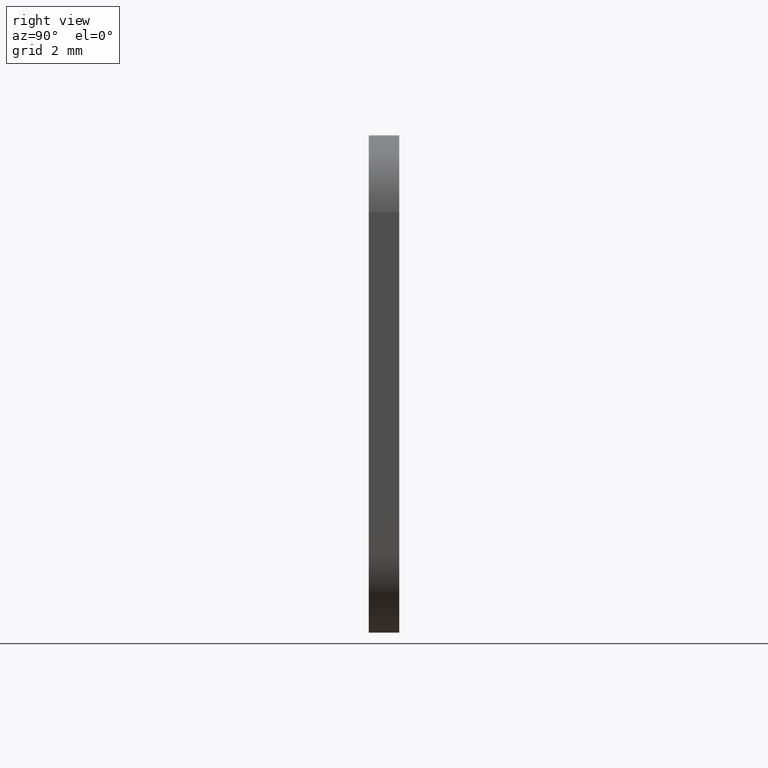
[diagram: clean part render]
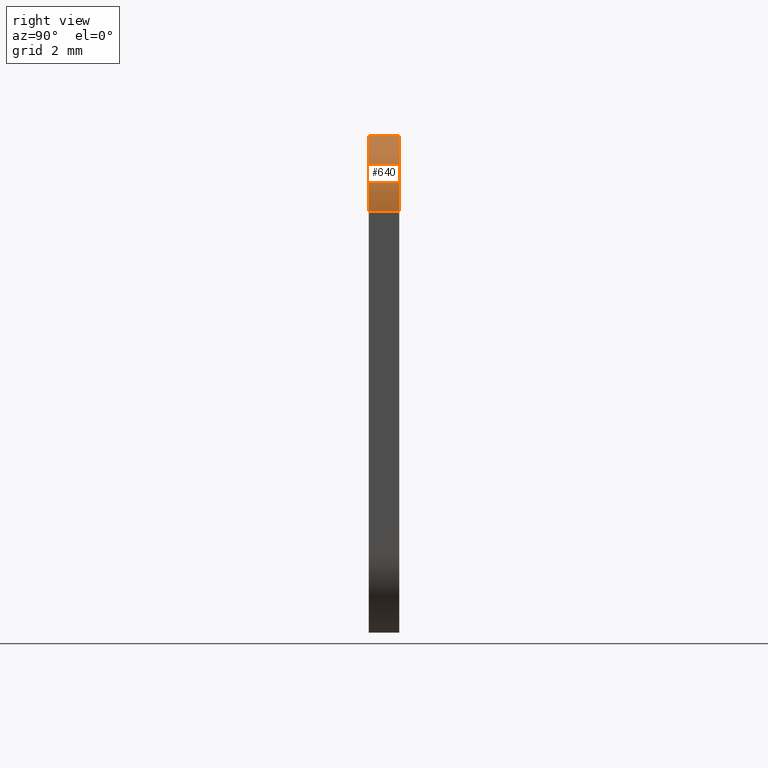
[diagram: same view with one face highlighted and labeled with its STEP entity id]
A machine part, right view. The second image highlights one B-rep face of the part: STEP entity #640.
In plain terms, the highlighted face is a freeform B-spline surface patch.
Its self-contained STEP definition (entity closure, byte-faithful):
#444=CARTESIAN_POINT('',(7.0,0.0,4.500000000000000));
#445=VERTEX_POINT('',#444);
#451=CARTESIAN_POINT('',(4.999999895280270,0.0,6.500000000000000));
#452=VERTEX_POINT('',#451);
#453=CARTESIAN_POINT('',(7.0,0.0,4.500000000000000));
#454=CARTESIAN_POINT('',(7.000000000000001,0.0,5.328427155417889));
#455=CARTESIAN_POINT('',(6.414213525349081,0.0,5.914213599397109));
#456=CARTESIAN_POINT('',(5.828427050698159,0.0,6.500000043376331));
#457=CARTESIAN_POINT('',(4.999999895280271,0.0,6.499999999999997));
#465=(BOUNDED_CURVE()B_SPLINE_CURVE(2,(#453,#454,#455,#456,#457),.UNSPECIFIED.,.F.,.U.)B_SPLINE_CURVE_WITH_KNOTS((3,2,3),(0.0,0.500000000000000,1.0),.UNSPECIFIED.)CURVE()GEOMETRIC_REPRESENTATION_ITEM()RATIONAL_B_SPLINE_CURVE((1.0,0.923879527501974,1.0,0.923879527501974,1.0))REPRESENTATION_ITEM(''));
#466=EDGE_CURVE('',#445,#452,#465,.T.);
#508=CARTESIAN_POINT('',(4.999999895280270,0.800003000000049,6.500000000000000));
#509=VERTEX_POINT('',#508);
#515=CARTESIAN_POINT('',(7.0,0.800003000000049,4.500000000000000));
#516=VERTEX_POINT('',#515);
#517=CARTESIAN_POINT('',(7.0,0.800003000000049,4.500000000000000));
#518=CARTESIAN_POINT('',(7.000000000000001,0.800003000000049,5.328427155417889));
#519=CARTESIAN_POINT('',(6.414213525349081,0.800003000000049,5.914213599397109));
#520=CARTESIAN_POINT('',(5.828427050698159,0.800003000000049,6.500000043376331));
#521=CARTESIAN_POINT('',(4.999999895280271,0.800003000000049,6.499999999999997));
#529=(BOUNDED_CURVE()B_SPLINE_CURVE(2,(#517,#518,#519,#520,#521),.UNSPECIFIED.,.F.,.U.)B_SPLINE_CURVE_WITH_KNOTS((3,2,3),(0.0,0.500000000000000,1.0),.UNSPECIFIED.)CURVE()GEOMETRIC_REPRESENTATION_ITEM()RATIONAL_B_SPLINE_CURVE((1.0,0.923879527501974,1.0,0.923879527501974,1.0))REPRESENTATION_ITEM(''));
#530=EDGE_CURVE('',#516,#509,#529,.T.);
#602=CARTESIAN_POINT('',(4.999999895280270,0.800003000000049,6.500000000000000));
#603=CARTESIAN_POINT('',(4.999999895280270,0.0,6.500000000000000));
#604=QUASI_UNIFORM_CURVE('',1,(#602,#603),.UNSPECIFIED.,.F.,.U.);
#605=EDGE_CURVE('',#509,#452,#604,.T.);
#616=CARTESIAN_POINT('',(4.912761225269327,0.820003075000050,6.498096443163715));
#617=CARTESIAN_POINT('',(4.912761225269327,-0.020500076875001,6.498096443163715));
#618=CARTESIAN_POINT('',(7.152120528918072,0.820003075000050,6.595868981871969));
#619=CARTESIAN_POINT('',(7.152120528918072,-0.020500076875001,6.595868981871969));
#620=CARTESIAN_POINT('',(6.995085826463835,0.820003075000050,4.359883815912956));
#621=CARTESIAN_POINT('',(6.995085826463835,-0.020500076875001,4.359883815912956));
#629=(BOUNDED_SURFACE()B_SPLINE_SURFACE(1,2,((#616,#618,#620),(#617,#619,#621)),.UNSPECIFIED.,.F.,.F.,.U.)B_SPLINE_SURFACE_WITH_KNOTS((2,2),(3,3),(0.0,1.0),(0.0,3.583485079683969),.UNSPECIFIED.)GEOMETRIC_REPRESENTATION_ITEM()RATIONAL_B_SPLINE_SURFACE(((1.0,0.664513898535122,0.996233561259061),(1.0,0.664513898535122,0.996233561259061)))REPRESENTATION_ITEM('')SURFACE());
#630=ORIENTED_EDGE('',*,*,#466,.F.);
#631=CARTESIAN_POINT('',(7.0,0.800003000000049,4.500000000000000));
#632=CARTESIAN_POINT('',(7.0,0.0,4.500000000000000));
#633=QUASI_UNIFORM_CURVE('',1,(#631,#632),.UNSPECIFIED.,.F.,.U.);
#634=EDGE_CURVE('',#516,#445,#633,.T.);
#635=ORIENTED_EDGE('',*,*,#634,.F.);
#636=ORIENTED_EDGE('',*,*,#530,.T.);
#637=ORIENTED_EDGE('',*,*,#605,.T.);
#638=EDGE_LOOP('',(#630,#635,#636,#637));
#639=FACE_OUTER_BOUND('',#638,.T.);
#640=ADVANCED_FACE('',(#639),#629,.T.);